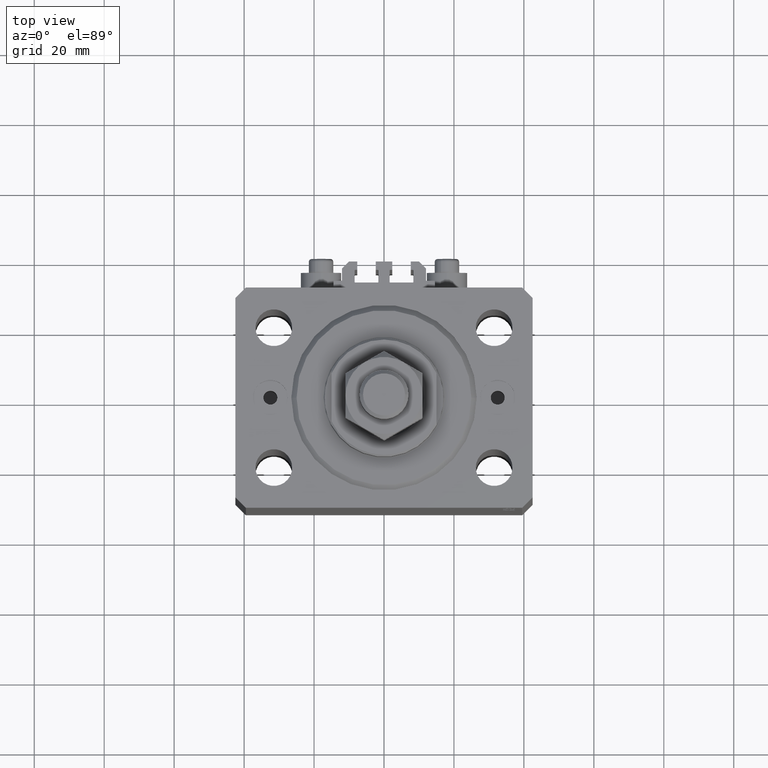
[diagram: clean part render]
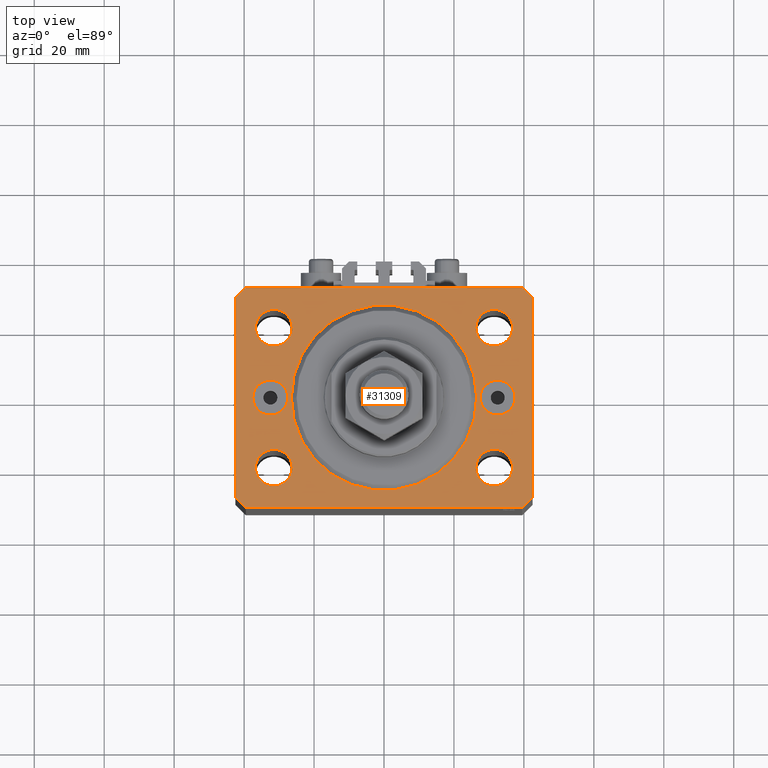
[diagram: same view with one face highlighted and labeled with its STEP entity id]
A machine part, top view. The second image highlights one B-rep face of the part: STEP entity #31309.
In plain terms, the highlighted planar face has unit normal (0, 0, 1).
Its self-contained STEP definition (entity closure, byte-faithful):
#356 = AXIS2_PLACEMENT_3D ( 'NONE', #25946, #48147, #3015 ) ;
#538 = DIRECTION ( 'NONE',  ( 0.000000000000000000, 0.000000000000000000, 1.000000000000000000 ) ) ;
#604 = DIRECTION ( 'NONE',  ( 1.000000000000000000, 0.000000000000000000, 0.000000000000000000 ) ) ;
#809 = EDGE_LOOP ( 'NONE', ( #18339, #32500 ) ) ;
#846 = DIRECTION ( 'NONE',  ( 0.000000000000000000, 0.000000000000000000, 1.000000000000000000 ) ) ;
#1036 = CARTESIAN_POINT ( 'NONE',  ( -26.50000000000000355, 3.245314017740486554E-15, 0.000000000000000000 ) ) ;
#1843 = AXIS2_PLACEMENT_3D ( 'NONE', #23246, #15636, #38287 ) ;
#2228 = EDGE_LOOP ( 'NONE', ( #46756, #14478 ) ) ;
#2474 = VERTEX_POINT ( 'NONE', #1036 ) ;
#3015 = DIRECTION ( 'NONE',  ( 1.000000000000000000, 0.000000000000000000, 0.000000000000000000 ) ) ;
#3126 = VECTOR ( 'NONE', #4944, 1000.000000000000000 ) ;
#3584 = EDGE_CURVE ( 'NONE', #13778, #27038, #37136, .T. ) ;
#3667 = VECTOR ( 'NONE', #14114, 1000.000000000000000 ) ;
#4167 = CARTESIAN_POINT ( 'NONE',  ( 32.50000000000000000, 0.000000000000000000, 0.000000000000000000 ) ) ;
#4230 = CARTESIAN_POINT ( 'NONE',  ( -42.50000000000000000, -28.50000000000000000, 0.000000000000000000 ) ) ;
#4310 = VECTOR ( 'NONE', #4830, 1000.000000000000000 ) ;
#4795 = DIRECTION ( 'NONE',  ( 0.000000000000000000, 0.000000000000000000, 1.000000000000000000 ) ) ;
#4830 = DIRECTION ( 'NONE',  ( -1.000000000000000000, 0.000000000000000000, 0.000000000000000000 ) ) ;
#4944 = DIRECTION ( 'NONE',  ( 0.7071067811865471286, -0.7071067811865479058, 0.000000000000000000 ) ) ;
#5243 = CIRCLE ( 'NONE', #37527, 5.249999999999997335 ) ;
#5414 = VERTEX_POINT ( 'NONE', #41581 ) ;
#6024 = DIRECTION ( 'NONE',  ( 1.000000000000000000, 0.000000000000000000, 0.000000000000000000 ) ) ;
#6139 = AXIS2_PLACEMENT_3D ( 'NONE', #19625, #846, #15946 ) ;
#6328 = DIRECTION ( 'NONE',  ( 8.886653596232072440E-15, 1.000000000000000000, 0.000000000000000000 ) ) ;
#6340 = ORIENTED_EDGE ( 'NONE', *, *, #7838, .T. ) ;
#6701 = EDGE_CURVE ( 'NONE', #5414, #32316, #10505, .T. ) ;
#7479 = EDGE_CURVE ( 'NONE', #24280, #34748, #18560, .T. ) ;
#7524 = DIRECTION ( 'NONE',  ( 1.000000000000000000, 0.000000000000000000, 0.000000000000000000 ) ) ;
#7752 = FACE_BOUND ( 'NONE', #16709, .T. ) ;
#7838 = EDGE_CURVE ( 'NONE', #18907, #10181, #22416, .T. ) ;
#8309 = EDGE_LOOP ( 'NONE', ( #32186, #9549 ) ) ;
#8532 = VERTEX_POINT ( 'NONE', #43535 ) ;
#9020 = CARTESIAN_POINT ( 'NONE',  ( 39.50000000000056843, 31.50000000000000000, 0.000000000000000000 ) ) ;
#9049 = DIRECTION ( 'NONE',  ( 1.000000000000000000, 0.000000000000000000, 0.000000000000000000 ) ) ;
#9169 = AXIS2_PLACEMENT_3D ( 'NONE', #37799, #15154, #34085 ) ;
#9253 = ORIENTED_EDGE ( 'NONE', *, *, #22738, .T. ) ;
#9308 = CIRCLE ( 'NONE', #16459, 5.250000000000000888 ) ;
#9344 = CARTESIAN_POINT ( 'NONE',  ( -26.25000000000000000, 19.99999999999999645, 0.000000000000000000 ) ) ;
#9442 = CARTESIAN_POINT ( 'NONE',  ( -37.50000000000000000, 6.123233995736768255E-16, 0.000000000000000000 ) ) ;
#9549 = ORIENTED_EDGE ( 'NONE', *, *, #47960, .F. ) ;
#9922 = AXIS2_PLACEMENT_3D ( 'NONE', #19614, #15450, #7524 ) ;
#9977 = DIRECTION ( 'NONE',  ( 0.000000000000000000, 0.000000000000000000, 1.000000000000000000 ) ) ;
#10091 = AXIS2_PLACEMENT_3D ( 'NONE', #22949, #27137, #23676 ) ;
#10181 = VERTEX_POINT ( 'NONE', #29611 ) ;
#10261 = VERTEX_POINT ( 'NONE', #41668 ) ;
#10505 = CIRCLE ( 'NONE', #43578, 4.999999999999997335 ) ;
#11236 = PLANE ( 'NONE',  #24774 ) ;
#11438 = CARTESIAN_POINT ( 'NONE',  ( 31.50000000000000000, 19.99999999999999289, 0.000000000000000000 ) ) ;
#11478 = FACE_BOUND ( 'NONE', #2228, .T. ) ;
#11537 = ORIENTED_EDGE ( 'NONE', *, *, #6701, .T. ) ;
#12090 = DIRECTION ( 'NONE',  ( 0.000000000000000000, -0.000000000000000000, -1.000000000000000000 ) ) ;
#12139 = CARTESIAN_POINT ( 'NONE',  ( 26.25000000000000355, 19.99999999999999289, 0.000000000000000000 ) ) ;
#12268 = LINE ( 'NONE', #9020, #4310 ) ;
#12301 = CIRCLE ( 'NONE', #9922, 5.250000000000000888 ) ;
#12680 = VERTEX_POINT ( 'NONE', #9344 ) ;
#12874 = CARTESIAN_POINT ( 'NONE',  ( 36.75000000000000000, 19.99999999999999289, 0.000000000000000000 ) ) ;
#12901 = AXIS2_PLACEMENT_3D ( 'NONE', #29742, #37384, #37134 ) ;
#13778 = VERTEX_POINT ( 'NONE', #35190 ) ;
#13964 = CIRCLE ( 'NONE', #9169, 5.000000000000000888 ) ;
#14114 = DIRECTION ( 'NONE',  ( 0.000000000000000000, -1.000000000000000000, 0.000000000000000000 ) ) ;
#14478 = ORIENTED_EDGE ( 'NONE', *, *, #41202, .F. ) ;
#14833 = CIRCLE ( 'NONE', #6139, 5.249999999999997335 ) ;
#15154 = DIRECTION ( 'NONE',  ( 0.000000000000000000, 0.000000000000000000, 1.000000000000000000 ) ) ;
#15272 = CIRCLE ( 'NONE', #1843, 5.250000000000000888 ) ;
#15450 = DIRECTION ( 'NONE',  ( 0.000000000000000000, 0.000000000000000000, 1.000000000000000000 ) ) ;
#15636 = DIRECTION ( 'NONE',  ( 0.000000000000000000, 0.000000000000000000, 1.000000000000000000 ) ) ;
#15946 = DIRECTION ( 'NONE',  ( 1.000000000000000000, 0.000000000000000000, 0.000000000000000000 ) ) ;
#16294 = ORIENTED_EDGE ( 'NONE', *, *, #40537, .T. ) ;
#16308 = CARTESIAN_POINT ( 'NONE',  ( 31.49999999999999289, -20.00000000000000355, 0.000000000000000000 ) ) ;
#16389 = VECTOR ( 'NONE', #22977, 1000.000000000000114 ) ;
#16459 = AXIS2_PLACEMENT_3D ( 'NONE', #38591, #4795, #46461 ) ;
#16557 = VERTEX_POINT ( 'NONE', #12139 ) ;
#16628 = EDGE_LOOP ( 'NONE', ( #20752, #20991, #16294, #31096, #6340, #9253, #48243, #27032 ) ) ;
#16709 = EDGE_LOOP ( 'NONE', ( #11537, #31512 ) ) ;
#17420 = EDGE_LOOP ( 'NONE', ( #17733, #26366 ) ) ;
#17733 = ORIENTED_EDGE ( 'NONE', *, *, #38304, .F. ) ;
#17975 = CARTESIAN_POINT ( 'NONE',  ( 39.50000000000000711, -31.50000000000000000, 0.000000000000000000 ) ) ;
#18149 = EDGE_CURVE ( 'NONE', #37526, #16557, #5243, .T. ) ;
#18339 = ORIENTED_EDGE ( 'NONE', *, *, #29733, .F. ) ;
#18446 = EDGE_CURVE ( 'NONE', #2474, #28264, #40698, .T. ) ;
#18560 = CIRCLE ( 'NONE', #45294, 5.249999999999997335 ) ;
#18692 = DIRECTION ( 'NONE',  ( 0.7071067811865483499, 0.7071067811865466846, 0.000000000000000000 ) ) ;
#18907 = VERTEX_POINT ( 'NONE', #47518 ) ;
#19054 = AXIS2_PLACEMENT_3D ( 'NONE', #20599, #9977, #6024 ) ;
#19614 = CARTESIAN_POINT ( 'NONE',  ( -31.49999999999999289, -20.00000000000000355, 0.000000000000000000 ) ) ;
#19625 = CARTESIAN_POINT ( 'NONE',  ( 31.49999999999999289, -20.00000000000000355, 0.000000000000000000 ) ) ;
#19917 = EDGE_CURVE ( 'NONE', #28941, #18907, #24177, .T. ) ;
#20599 = CARTESIAN_POINT ( 'NONE',  ( 0.000000000000000000, 0.000000000000000000, 0.000000000000000000 ) ) ;
#20752 = ORIENTED_EDGE ( 'NONE', *, *, #35860, .T. ) ;
#20991 = ORIENTED_EDGE ( 'NONE', *, *, #37941, .T. ) ;
#22395 = DIRECTION ( 'NONE',  ( -0.7071067811865471286, -0.7071067811865479058, 0.000000000000000000 ) ) ;
#22416 = LINE ( 'NONE', #34650, #46865 ) ;
#22738 = EDGE_CURVE ( 'NONE', #10181, #13778, #40864, .T. ) ;
#22949 = CARTESIAN_POINT ( 'NONE',  ( 0.000000000000000000, 0.000000000000000000, 0.000000000000000000 ) ) ;
#22977 = DIRECTION ( 'NONE',  ( -0.7071067811865356934, 0.7071067811865594521, 0.000000000000000000 ) ) ;
#23246 = CARTESIAN_POINT ( 'NONE',  ( -31.50000000000000000, 19.99999999999999645, 0.000000000000000000 ) ) ;
#23671 = DIRECTION ( 'NONE',  ( 1.000000000000000000, 0.000000000000000000, 0.000000000000000000 ) ) ;
#23676 = DIRECTION ( 'NONE',  ( 1.000000000000000000, 0.000000000000000000, 0.000000000000000000 ) ) ;
#24177 = LINE ( 'NONE', #27648, #3126 ) ;
#24280 = VERTEX_POINT ( 'NONE', #47863 ) ;
#24774 = AXIS2_PLACEMENT_3D ( 'NONE', #45723, #26259, #37840 ) ;
#25135 = EDGE_CURVE ( 'NONE', #28264, #2474, #27705, .T. ) ;
#25946 = CARTESIAN_POINT ( 'NONE',  ( -31.50000000000000000, 19.99999999999999645, 0.000000000000000000 ) ) ;
#26218 = DIRECTION ( 'NONE',  ( 1.000000000000000000, 0.000000000000000000, 0.000000000000000000 ) ) ;
#26259 = DIRECTION ( 'NONE',  ( 0.000000000000000000, 0.000000000000000000, 1.000000000000000000 ) ) ;
#26366 = ORIENTED_EDGE ( 'NONE', *, *, #44938, .F. ) ;
#26422 = CARTESIAN_POINT ( 'NONE',  ( -36.75000000000000000, 19.99999999999999645, 0.000000000000000000 ) ) ;
#26497 = FACE_BOUND ( 'NONE', #8309, .T. ) ;
#26717 = CARTESIAN_POINT ( 'NONE',  ( 26.24999999999999645, -20.00000000000000355, 0.000000000000000000 ) ) ;
#26739 = FACE_BOUND ( 'NONE', #809, .T. ) ;
#27032 = ORIENTED_EDGE ( 'NONE', *, *, #42952, .T. ) ;
#27038 = VERTEX_POINT ( 'NONE', #38914 ) ;
#27137 = DIRECTION ( 'NONE',  ( 0.000000000000000000, 0.000000000000000000, 1.000000000000000000 ) ) ;
#27511 = VERTEX_POINT ( 'NONE', #26422 ) ;
#27648 = CARTESIAN_POINT ( 'NONE',  ( -42.50000000000000000, -28.50000000000000000, 0.000000000000000000 ) ) ;
#27705 = CIRCLE ( 'NONE', #19054, 26.50000000000000355 ) ;
#27798 = CARTESIAN_POINT ( 'NONE',  ( 32.50000000000000000, 0.000000000000000000, 0.000000000000000000 ) ) ;
#27899 = LINE ( 'NONE', #42939, #16389 ) ;
#28264 = VERTEX_POINT ( 'NONE', #29297 ) ;
#28941 = VERTEX_POINT ( 'NONE', #4230 ) ;
#29267 = ORIENTED_EDGE ( 'NONE', *, *, #18446, .F. ) ;
#29297 = CARTESIAN_POINT ( 'NONE',  ( 26.50000000000000355, 0.000000000000000000, 0.000000000000000000 ) ) ;
#29540 = CARTESIAN_POINT ( 'NONE',  ( 39.50000000000056843, 31.50000000000000000, 0.000000000000000000 ) ) ;
#29611 = CARTESIAN_POINT ( 'NONE',  ( 39.50000000000000711, -31.50000000000000000, 0.000000000000000000 ) ) ;
#29733 = EDGE_CURVE ( 'NONE', #12680, #27511, #15272, .T. ) ;
#29742 = CARTESIAN_POINT ( 'NONE',  ( -32.50000000000000000, 0.000000000000000000, 0.000000000000000000 ) ) ;
#30196 = FACE_OUTER_BOUND ( 'NONE', #16628, .T. ) ;
#30435 = FACE_BOUND ( 'NONE', #17420, .T. ) ;
#30495 = EDGE_LOOP ( 'NONE', ( #45851, #29267 ) ) ;
#31096 = ORIENTED_EDGE ( 'NONE', *, *, #19917, .T. ) ;
#31309 = ADVANCED_FACE ( 'NONE', ( #30196, #26739, #11478, #26497, #30435, #41533, #44999, #7752 ), #11236, .T. ) ;
#31512 = ORIENTED_EDGE ( 'NONE', *, *, #44119, .T. ) ;
#32186 = ORIENTED_EDGE ( 'NONE', *, *, #7479, .F. ) ;
#32273 = DIRECTION ( 'NONE',  ( 0.000000000000000000, 0.000000000000000000, 1.000000000000000000 ) ) ;
#32316 = VERTEX_POINT ( 'NONE', #45674 ) ;
#32500 = ORIENTED_EDGE ( 'NONE', *, *, #36437, .F. ) ;
#32811 = LINE ( 'NONE', #47859, #3667 ) ;
#32822 = AXIS2_PLACEMENT_3D ( 'NONE', #11438, #538, #26218 ) ;
#33227 = LINE ( 'NONE', #48762, #43779 ) ;
#34085 = DIRECTION ( 'NONE',  ( 1.000000000000000000, 0.000000000000000000, 0.000000000000000000 ) ) ;
#34229 = CIRCLE ( 'NONE', #356, 5.250000000000000888 ) ;
#34502 = DIRECTION ( 'NONE',  ( 1.000000000000000000, 0.000000000000000000, 0.000000000000000000 ) ) ;
#34650 = CARTESIAN_POINT ( 'NONE',  ( -39.50000000000000711, -31.50000000000000000, 0.000000000000000000 ) ) ;
#34748 = VERTEX_POINT ( 'NONE', #26717 ) ;
#34804 = VECTOR ( 'NONE', #6328, 1000.000000000000000 ) ;
#34936 = CIRCLE ( 'NONE', #12901, 5.000000000000000888 ) ;
#35190 = CARTESIAN_POINT ( 'NONE',  ( 42.50000000000000711, -28.50000000000000355, 0.000000000000000000 ) ) ;
#35860 = EDGE_CURVE ( 'NONE', #39702, #10261, #12268, .T. ) ;
#35882 = CARTESIAN_POINT ( 'NONE',  ( -36.74999999999999289, -20.00000000000000355, 0.000000000000000000 ) ) ;
#36437 = EDGE_CURVE ( 'NONE', #27511, #12680, #34229, .T. ) ;
#36738 = CIRCLE ( 'NONE', #32822, 5.249999999999997335 ) ;
#36901 = CARTESIAN_POINT ( 'NONE',  ( 42.50000000000000711, -28.50000000000000355, 0.000000000000000000 ) ) ;
#37134 = DIRECTION ( 'NONE',  ( 1.000000000000000000, 0.000000000000000000, 0.000000000000000000 ) ) ;
#37136 = LINE ( 'NONE', #36901, #34804 ) ;
#37384 = DIRECTION ( 'NONE',  ( 0.000000000000000000, 0.000000000000000000, 1.000000000000000000 ) ) ;
#37443 = DIRECTION ( 'NONE',  ( 1.000000000000000000, 0.000000000000000000, 0.000000000000000000 ) ) ;
#37526 = VERTEX_POINT ( 'NONE', #12874 ) ;
#37527 = AXIS2_PLACEMENT_3D ( 'NONE', #41559, #41078, #604 ) ;
#37799 = CARTESIAN_POINT ( 'NONE',  ( -32.50000000000000000, 0.000000000000000000, 0.000000000000000000 ) ) ;
#37804 = CARTESIAN_POINT ( 'NONE',  ( -27.50000000000000000, 0.000000000000000000, 0.000000000000000000 ) ) ;
#37840 = DIRECTION ( 'NONE',  ( 1.000000000000000000, 0.000000000000000000, -0.000000000000000000 ) ) ;
#37941 = EDGE_CURVE ( 'NONE', #10261, #8532, #33227, .T. ) ;
#38287 = DIRECTION ( 'NONE',  ( 1.000000000000000000, 0.000000000000000000, 0.000000000000000000 ) ) ;
#38304 = EDGE_CURVE ( 'NONE', #45245, #42344, #12301, .T. ) ;
#38591 = CARTESIAN_POINT ( 'NONE',  ( -31.49999999999999289, -20.00000000000000355, 0.000000000000000000 ) ) ;
#38647 = EDGE_LOOP ( 'NONE', ( #39472, #47008 ) ) ;
#38914 = CARTESIAN_POINT ( 'NONE',  ( 42.50000000000051870, 28.49999999999995381, 0.000000000000000000 ) ) ;
#39472 = ORIENTED_EDGE ( 'NONE', *, *, #41103, .F. ) ;
#39702 = VERTEX_POINT ( 'NONE', #29540 ) ;
#40537 = EDGE_CURVE ( 'NONE', #8532, #28941, #32811, .T. ) ;
#40698 = CIRCLE ( 'NONE', #10091, 26.50000000000000355 ) ;
#40864 = LINE ( 'NONE', #17975, #43393 ) ;
#41078 = DIRECTION ( 'NONE',  ( 0.000000000000000000, 0.000000000000000000, 1.000000000000000000 ) ) ;
#41103 = EDGE_CURVE ( 'NONE', #46152, #41702, #13964, .T. ) ;
#41202 = EDGE_CURVE ( 'NONE', #16557, #37526, #36738, .T. ) ;
#41533 = FACE_BOUND ( 'NONE', #30495, .T. ) ;
#41559 = CARTESIAN_POINT ( 'NONE',  ( 31.50000000000000000, 19.99999999999999289, 0.000000000000000000 ) ) ;
#41581 = CARTESIAN_POINT ( 'NONE',  ( 37.50000000000000000, 0.000000000000000000, 0.000000000000000000 ) ) ;
#41586 = CIRCLE ( 'NONE', #43953, 4.999999999999997335 ) ;
#41668 = CARTESIAN_POINT ( 'NONE',  ( -39.50000000000000711, 31.50000000000000000, 0.000000000000000000 ) ) ;
#41702 = VERTEX_POINT ( 'NONE', #9442 ) ;
#42344 = VERTEX_POINT ( 'NONE', #35882 ) ;
#42838 = DIRECTION ( 'NONE',  ( 0.000000000000000000, -0.000000000000000000, -1.000000000000000000 ) ) ;
#42939 = CARTESIAN_POINT ( 'NONE',  ( 42.50000000000051870, 28.49999999999995381, 0.000000000000000000 ) ) ;
#42952 = EDGE_CURVE ( 'NONE', #27038, #39702, #27899, .T. ) ;
#43393 = VECTOR ( 'NONE', #18692, 1000.000000000000000 ) ;
#43535 = CARTESIAN_POINT ( 'NONE',  ( -42.50000000000000000, 28.50000000000000000, 0.000000000000000000 ) ) ;
#43578 = AXIS2_PLACEMENT_3D ( 'NONE', #27798, #42838, #9049 ) ;
#43779 = VECTOR ( 'NONE', #22395, 1000.000000000000000 ) ;
#43953 = AXIS2_PLACEMENT_3D ( 'NONE', #4167, #12090, #34502 ) ;
#44119 = EDGE_CURVE ( 'NONE', #32316, #5414, #41586, .T. ) ;
#44938 = EDGE_CURVE ( 'NONE', #42344, #45245, #9308, .T. ) ;
#44999 = FACE_BOUND ( 'NONE', #38647, .T. ) ;
#45245 = VERTEX_POINT ( 'NONE', #45922 ) ;
#45294 = AXIS2_PLACEMENT_3D ( 'NONE', #16308, #32273, #23671 ) ;
#45674 = CARTESIAN_POINT ( 'NONE',  ( 27.50000000000000355, 6.123233995736762338E-16, 0.000000000000000000 ) ) ;
#45723 = CARTESIAN_POINT ( 'NONE',  ( 0.000000000000000000, 0.000000000000000000, 0.000000000000000000 ) ) ;
#45851 = ORIENTED_EDGE ( 'NONE', *, *, #25135, .F. ) ;
#45922 = CARTESIAN_POINT ( 'NONE',  ( -26.24999999999999289, -20.00000000000000355, 0.000000000000000000 ) ) ;
#46152 = VERTEX_POINT ( 'NONE', #37804 ) ;
#46461 = DIRECTION ( 'NONE',  ( 1.000000000000000000, 0.000000000000000000, 0.000000000000000000 ) ) ;
#46756 = ORIENTED_EDGE ( 'NONE', *, *, #18149, .F. ) ;
#46865 = VECTOR ( 'NONE', #37443, 1000.000000000000000 ) ;
#47008 = ORIENTED_EDGE ( 'NONE', *, *, #48659, .F. ) ;
#47518 = CARTESIAN_POINT ( 'NONE',  ( -39.50000000000000711, -31.50000000000000000, 0.000000000000000000 ) ) ;
#47859 = CARTESIAN_POINT ( 'NONE',  ( -42.50000000000000000, 28.50000000000000000, 0.000000000000000000 ) ) ;
#47863 = CARTESIAN_POINT ( 'NONE',  ( 36.74999999999999289, -20.00000000000000355, 0.000000000000000000 ) ) ;
#47960 = EDGE_CURVE ( 'NONE', #34748, #24280, #14833, .T. ) ;
#48147 = DIRECTION ( 'NONE',  ( 0.000000000000000000, 0.000000000000000000, 1.000000000000000000 ) ) ;
#48243 = ORIENTED_EDGE ( 'NONE', *, *, #3584, .T. ) ;
#48659 = EDGE_CURVE ( 'NONE', #41702, #46152, #34936, .T. ) ;
#48762 = CARTESIAN_POINT ( 'NONE',  ( -39.50000000000000711, 31.50000000000000000, 0.000000000000000000 ) ) ;